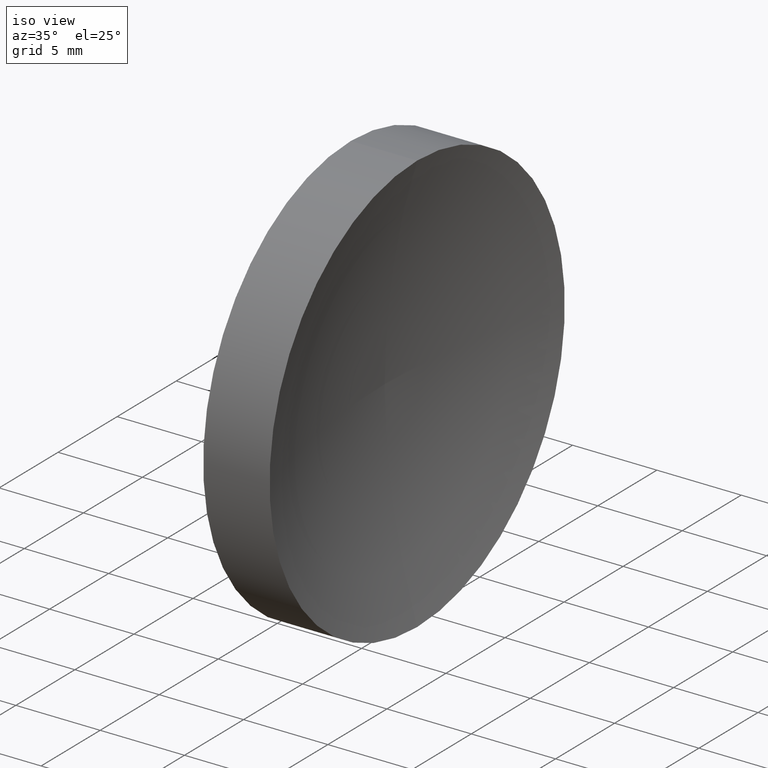
[diagram: clean part render]
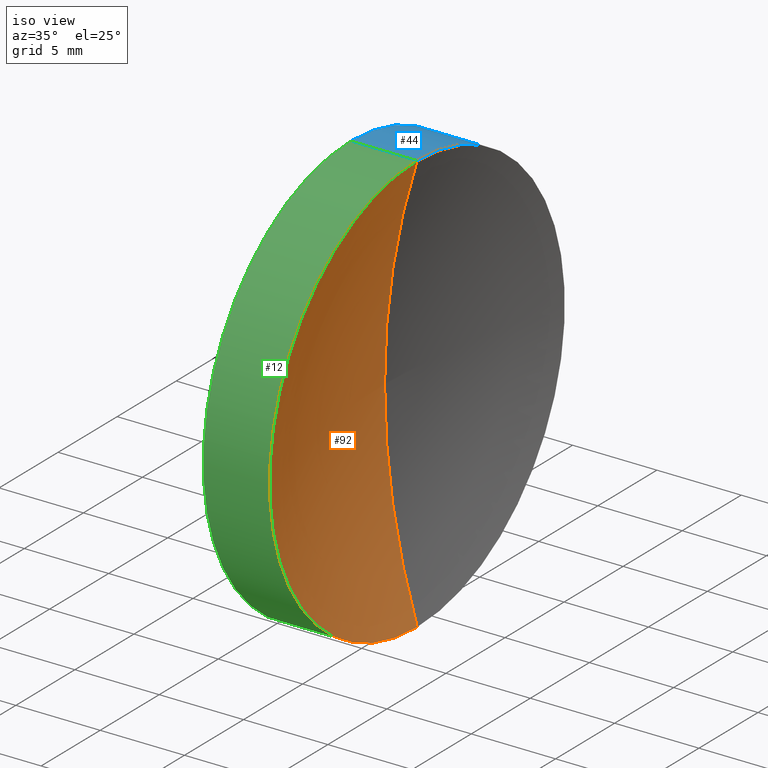
[diagram: same view with three faces highlighted in distinct colors, each labeled with its STEP entity id]
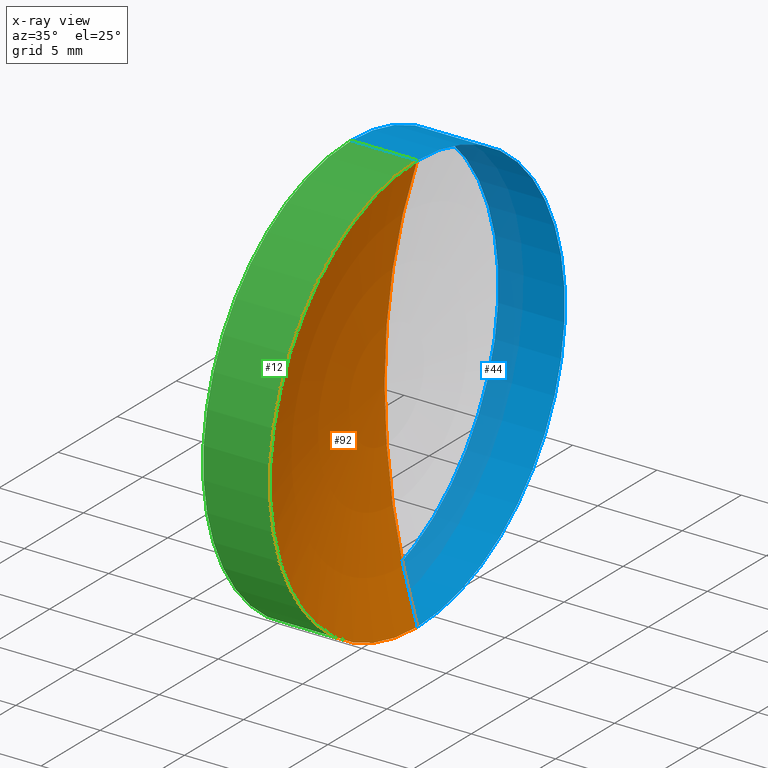
[diagram: x-ray of the same camera — body ghosted, the three highlighted faces saturated]
A machine part, iso view with three faces highlighted in distinct colors.
The next image is the same camera in x-ray (body ghosted, the three faces saturated) — at least one of them is partly hidden behind the body in this view.
Their STEP definitions:

[orange] entity #92 — the highlighted toroidal blend (fillet) surface has major radius 0.0116 mm and minor (blend) radius 41.3 mm.
#14 = CARTESIAN_POINT ( 'NONE',  ( 100.8323354242160100, 32.61076812922678400, -0.01159734503471815400 ) ) ;
#16 = DIRECTION ( 'NONE',  ( 0.0000000000000000000, -1.000000000000000000, 0.0000000000000000000 ) ) ;
#17 = CARTESIAN_POINT ( 'NONE',  ( 61.46572775823270300, 32.61076812922678400, 0.0000000000000000000 ) ) ;
#18 = CIRCLE ( 'NONE', #125, 41.30000000000000400 ) ;
#22 = VERTEX_POINT ( 'NONE', #103 ) ;
#26 = CARTESIAN_POINT ( 'NONE',  ( 100.8323354242160100, 32.61076812922678400, 0.01159734503471815400 ) ) ;
#34 = ORIENTED_EDGE ( 'NONE', *, *, #76, .F. ) ;
#47 = DIRECTION ( 'NONE',  ( -0.0000000000000000000, 1.000000000000000000, 1.224646799147353200E-016 ) ) ;
#48 = AXIS2_PLACEMENT_3D ( 'NONE', #17, #165, #60 ) ;
#51 = EDGE_CURVE ( 'NONE', #67, #22, #18, .T. ) ;
#52 = CIRCLE ( 'NONE', #140, 41.30000000000000400 ) ;
#60 = DIRECTION ( 'NONE',  ( 0.0000000000000000000, 0.0000000000000000000, 1.000000000000000000 ) ) ;
#62 = DIRECTION ( 'NONE',  ( -1.000000000000000000, -0.0000000000000000000, -0.0000000000000000000 ) ) ;
#67 = VERTEX_POINT ( 'NONE', #124 ) ;
#72 = DIRECTION ( 'NONE',  ( 0.0000000000000000000, 0.0000000000000000000, 1.000000000000000000 ) ) ;
#74 = ORIENTED_EDGE ( 'NONE', *, *, #85, .T. ) ;
#76 = EDGE_CURVE ( 'NONE', #139, #67, #123, .T. ) ;
#77 = FACE_OUTER_BOUND ( 'NONE', #81, .T. ) ;
#81 = EDGE_LOOP ( 'NONE', ( #34, #74, #144 ) ) ;
#85 = EDGE_CURVE ( 'NONE', #139, #22, #52, .T. ) ;
#92 = ADVANCED_FACE ( 'NONE', ( #77 ), #117, .F. ) ;
#103 = CARTESIAN_POINT ( 'NONE',  ( 59.53233705252611000, 32.61076812922678400, 0.0000000000000000000 ) ) ;
#110 = AXIS2_PLACEMENT_3D ( 'NONE', #155, #62, #72 ) ;
#117 = TOROIDAL_SURFACE ( 'NONE', #110, 0.01159734503471815400, 41.30000000000000400 ) ;
#122 = DIRECTION ( 'NONE',  ( 0.0000000000000000000, 0.0000000000000000000, -1.000000000000000000 ) ) ;
#123 = CIRCLE ( 'NONE', #48, 12.49999999999999600 ) ;
#124 = CARTESIAN_POINT ( 'NONE',  ( 61.46572775823270300, 32.61076812922678400, 12.50000000000000000 ) ) ;
#125 = AXIS2_PLACEMENT_3D ( 'NONE', #26, #16, #122 ) ;
#136 = DIRECTION ( 'NONE',  ( 0.0000000000000000000, -1.680119589323783900E-016, 1.000000000000000000 ) ) ;
#138 = CARTESIAN_POINT ( 'NONE',  ( 61.46572775823270300, 32.61076812922678400, -12.50000000000000000 ) ) ;
#139 = VERTEX_POINT ( 'NONE', #138 ) ;
#140 = AXIS2_PLACEMENT_3D ( 'NONE', #14, #47, #136 ) ;
#144 = ORIENTED_EDGE ( 'NONE', *, *, #51, .F. ) ;
#155 = CARTESIAN_POINT ( 'NONE',  ( 100.8323354242160100, 32.61076812922678400, 0.0000000000000000000 ) ) ;
#165 = DIRECTION ( 'NONE',  ( -1.000000000000000000, -0.0000000000000000000, -0.0000000000000000000 ) ) ;

[blue] entity #44 — the highlighted cylindrical surface (partial cylindrical patch) has radius 12.5 mm, axis along (-1, -0, -0).
#5 = CARTESIAN_POINT ( 'NONE',  ( 57.53233705252611700, 32.61076812922678400, -12.49999999999999600 ) ) ;
#7 = EDGE_CURVE ( 'NONE', #139, #141, #50, .T. ) ;
#11 = VECTOR ( 'NONE', #42, 1000.000000000000000 ) ;
#15 = VERTEX_POINT ( 'NONE', #150 ) ;
#19 = EDGE_CURVE ( 'NONE', #67, #15, #111, .T. ) ;
#24 = EDGE_CURVE ( 'NONE', #15, #141, #40, .T. ) ;
#29 = ORIENTED_EDGE ( 'NONE', *, *, #7, .T. ) ;
#33 = AXIS2_PLACEMENT_3D ( 'NONE', #41, #163, #154 ) ;
#40 = CIRCLE ( 'NONE', #63, 12.49999999999999600 ) ;
#41 = CARTESIAN_POINT ( 'NONE',  ( 56.10091507999716500, 32.61076812922678400, 0.0000000000000000000 ) ) ;
#42 = DIRECTION ( 'NONE',  ( -1.000000000000000000, -0.0000000000000000000, -0.0000000000000000000 ) ) ;
#43 = DIRECTION ( 'NONE',  ( 0.0000000000000000000, 0.0000000000000000000, 1.000000000000000000 ) ) ;
#44 = ADVANCED_FACE ( 'NONE', ( #158 ), #66, .T. ) ;
#45 = AXIS2_PLACEMENT_3D ( 'NONE', #156, #107, #73 ) ;
#50 = LINE ( 'NONE', #89, #11 ) ;
#58 = CARTESIAN_POINT ( 'NONE',  ( 56.10091507999716500, 32.61076812922678400, 12.49999999999999600 ) ) ;
#63 = AXIS2_PLACEMENT_3D ( 'NONE', #132, #78, #43 ) ;
#66 = CYLINDRICAL_SURFACE ( 'NONE', #33, 12.49999999999999600 ) ;
#67 = VERTEX_POINT ( 'NONE', #124 ) ;
#73 = DIRECTION ( 'NONE',  ( 0.0000000000000000000, 0.0000000000000000000, 1.000000000000000000 ) ) ;
#78 = DIRECTION ( 'NONE',  ( -1.000000000000000000, -0.0000000000000000000, -0.0000000000000000000 ) ) ;
#84 = EDGE_LOOP ( 'NONE', ( #118, #29, #88, #161 ) ) ;
#88 = ORIENTED_EDGE ( 'NONE', *, *, #24, .F. ) ;
#89 = CARTESIAN_POINT ( 'NONE',  ( 56.10091507999716500, 32.61076812922678400, -12.49999999999999600 ) ) ;
#91 = DIRECTION ( 'NONE',  ( -1.000000000000000000, -0.0000000000000000000, -0.0000000000000000000 ) ) ;
#93 = EDGE_CURVE ( 'NONE', #67, #139, #129, .T. ) ;
#97 = VECTOR ( 'NONE', #91, 1000.000000000000000 ) ;
#107 = DIRECTION ( 'NONE',  ( -1.000000000000000000, -0.0000000000000000000, -0.0000000000000000000 ) ) ;
#111 = LINE ( 'NONE', #58, #97 ) ;
#118 = ORIENTED_EDGE ( 'NONE', *, *, #93, .T. ) ;
#124 = CARTESIAN_POINT ( 'NONE',  ( 61.46572775823270300, 32.61076812922678400, 12.50000000000000000 ) ) ;
#129 = CIRCLE ( 'NONE', #45, 12.49999999999999600 ) ;
#132 = CARTESIAN_POINT ( 'NONE',  ( 57.53233705252611700, 32.61076812922678400, 0.0000000000000000000 ) ) ;
#138 = CARTESIAN_POINT ( 'NONE',  ( 61.46572775823270300, 32.61076812922678400, -12.50000000000000000 ) ) ;
#139 = VERTEX_POINT ( 'NONE', #138 ) ;
#141 = VERTEX_POINT ( 'NONE', #5 ) ;
#150 = CARTESIAN_POINT ( 'NONE',  ( 57.53233705252611700, 32.61076812922678400, 12.49999999999999600 ) ) ;
#154 = DIRECTION ( 'NONE',  ( 0.0000000000000000000, 0.0000000000000000000, 1.000000000000000000 ) ) ;
#156 = CARTESIAN_POINT ( 'NONE',  ( 61.46572775823270300, 32.61076812922678400, 0.0000000000000000000 ) ) ;
#158 = FACE_OUTER_BOUND ( 'NONE', #84, .T. ) ;
#161 = ORIENTED_EDGE ( 'NONE', *, *, #19, .F. ) ;
#163 = DIRECTION ( 'NONE',  ( -1.000000000000000000, -0.0000000000000000000, -0.0000000000000000000 ) ) ;

[green] entity #12 — the highlighted cylindrical surface (partial cylindrical patch) has radius 12.5 mm, axis along (-1, -0, -0).
#2 = CARTESIAN_POINT ( 'NONE',  ( 57.53233705252611700, 32.61076812922678400, 0.0000000000000000000 ) ) ;
#3 = DIRECTION ( 'NONE',  ( -1.000000000000000000, -0.0000000000000000000, -0.0000000000000000000 ) ) ;
#5 = CARTESIAN_POINT ( 'NONE',  ( 57.53233705252611700, 32.61076812922678400, -12.49999999999999600 ) ) ;
#6 = EDGE_LOOP ( 'NONE', ( #37, #135, #159, #105 ) ) ;
#7 = EDGE_CURVE ( 'NONE', #139, #141, #50, .T. ) ;
#9 = FACE_OUTER_BOUND ( 'NONE', #6, .T. ) ;
#11 = VECTOR ( 'NONE', #42, 1000.000000000000000 ) ;
#12 = ADVANCED_FACE ( 'NONE', ( #9 ), #149, .T. ) ;
#15 = VERTEX_POINT ( 'NONE', #150 ) ;
#17 = CARTESIAN_POINT ( 'NONE',  ( 61.46572775823270300, 32.61076812922678400, 0.0000000000000000000 ) ) ;
#19 = EDGE_CURVE ( 'NONE', #67, #15, #111, .T. ) ;
#23 = DIRECTION ( 'NONE',  ( 0.0000000000000000000, 0.0000000000000000000, 1.000000000000000000 ) ) ;
#37 = ORIENTED_EDGE ( 'NONE', *, *, #7, .F. ) ;
#42 = DIRECTION ( 'NONE',  ( -1.000000000000000000, -0.0000000000000000000, -0.0000000000000000000 ) ) ;
#48 = AXIS2_PLACEMENT_3D ( 'NONE', #17, #165, #60 ) ;
#50 = LINE ( 'NONE', #89, #11 ) ;
#58 = CARTESIAN_POINT ( 'NONE',  ( 56.10091507999716500, 32.61076812922678400, 12.49999999999999600 ) ) ;
#59 = AXIS2_PLACEMENT_3D ( 'NONE', #2, #3, #115 ) ;
#60 = DIRECTION ( 'NONE',  ( 0.0000000000000000000, 0.0000000000000000000, 1.000000000000000000 ) ) ;
#67 = VERTEX_POINT ( 'NONE', #124 ) ;
#70 = DIRECTION ( 'NONE',  ( -1.000000000000000000, -0.0000000000000000000, -0.0000000000000000000 ) ) ;
#76 = EDGE_CURVE ( 'NONE', #139, #67, #123, .T. ) ;
#79 = CIRCLE ( 'NONE', #59, 12.49999999999999600 ) ;
#89 = CARTESIAN_POINT ( 'NONE',  ( 56.10091507999716500, 32.61076812922678400, -12.49999999999999600 ) ) ;
#91 = DIRECTION ( 'NONE',  ( -1.000000000000000000, -0.0000000000000000000, -0.0000000000000000000 ) ) ;
#97 = VECTOR ( 'NONE', #91, 1000.000000000000000 ) ;
#100 = AXIS2_PLACEMENT_3D ( 'NONE', #134, #70, #23 ) ;
#105 = ORIENTED_EDGE ( 'NONE', *, *, #152, .F. ) ;
#111 = LINE ( 'NONE', #58, #97 ) ;
#115 = DIRECTION ( 'NONE',  ( 0.0000000000000000000, 0.0000000000000000000, 1.000000000000000000 ) ) ;
#123 = CIRCLE ( 'NONE', #48, 12.49999999999999600 ) ;
#124 = CARTESIAN_POINT ( 'NONE',  ( 61.46572775823270300, 32.61076812922678400, 12.50000000000000000 ) ) ;
#134 = CARTESIAN_POINT ( 'NONE',  ( 56.10091507999716500, 32.61076812922678400, 0.0000000000000000000 ) ) ;
#135 = ORIENTED_EDGE ( 'NONE', *, *, #76, .T. ) ;
#138 = CARTESIAN_POINT ( 'NONE',  ( 61.46572775823270300, 32.61076812922678400, -12.50000000000000000 ) ) ;
#139 = VERTEX_POINT ( 'NONE', #138 ) ;
#141 = VERTEX_POINT ( 'NONE', #5 ) ;
#149 = CYLINDRICAL_SURFACE ( 'NONE', #100, 12.49999999999999600 ) ;
#150 = CARTESIAN_POINT ( 'NONE',  ( 57.53233705252611700, 32.61076812922678400, 12.49999999999999600 ) ) ;
#152 = EDGE_CURVE ( 'NONE', #141, #15, #79, .T. ) ;
#159 = ORIENTED_EDGE ( 'NONE', *, *, #19, .T. ) ;
#165 = DIRECTION ( 'NONE',  ( -1.000000000000000000, -0.0000000000000000000, -0.0000000000000000000 ) ) ;